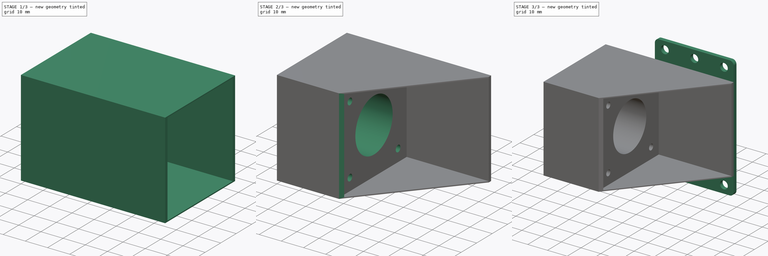
[diagram: build sequence overview — one tinted view per stage of 3, left to right]
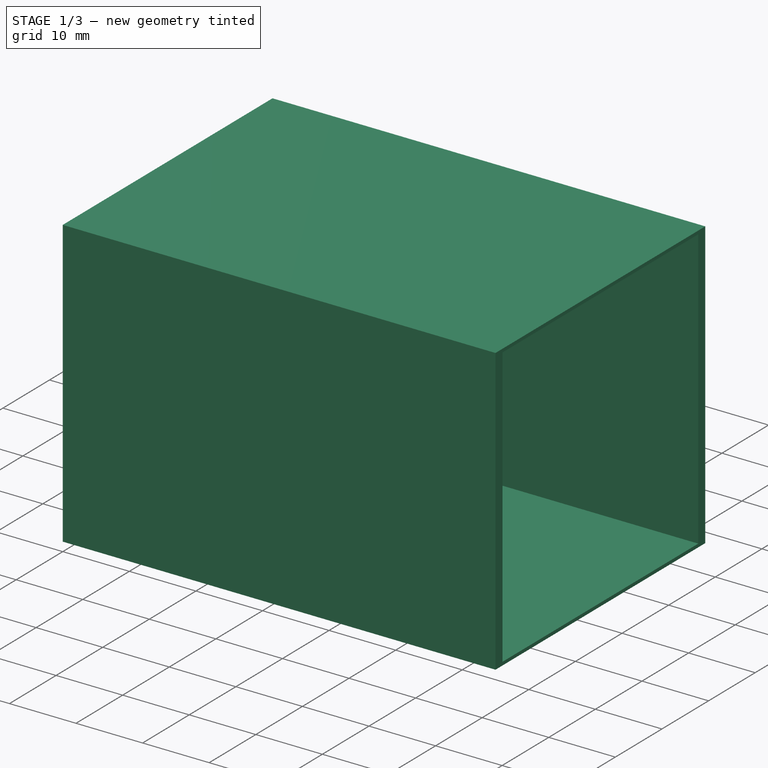
[diagram: stage 1 of 3 — iso view after this stage's code; geometry added in this stage tinted green]
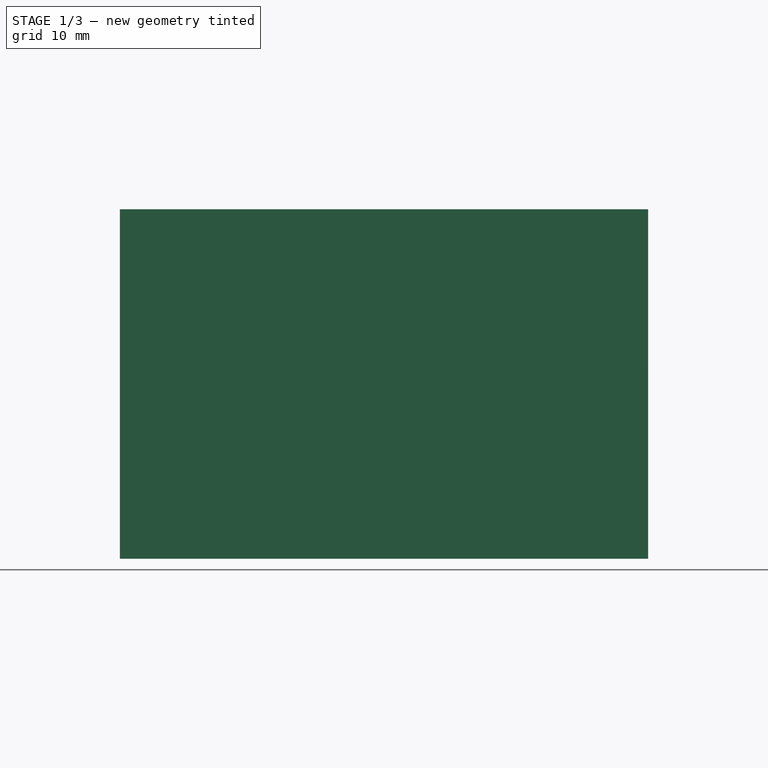
[diagram: stage 1 of 3 — front view after this stage's code; geometry added in this stage tinted green]
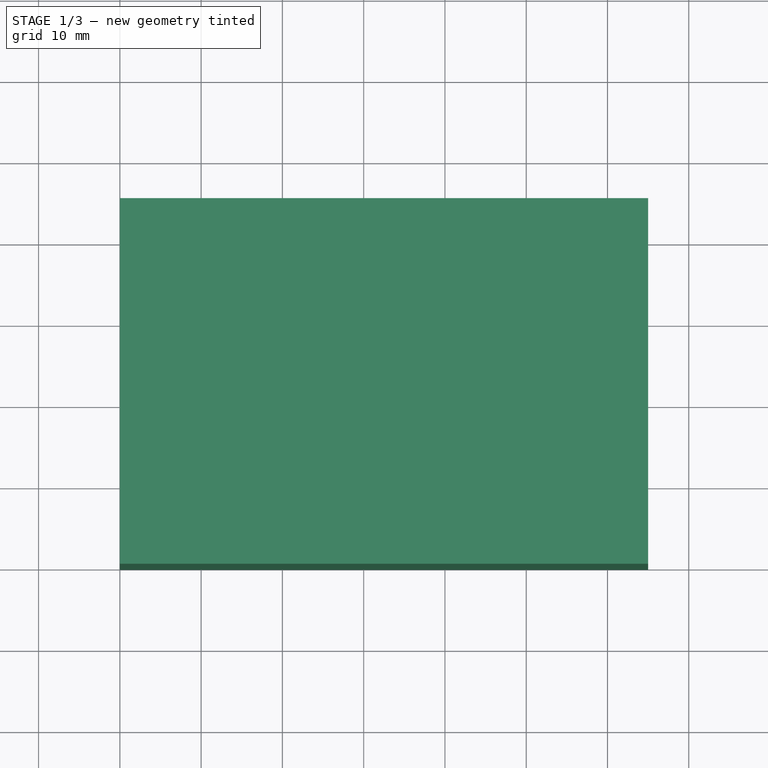
[diagram: stage 1 of 3 — top view after this stage's code; geometry added in this stage tinted green]
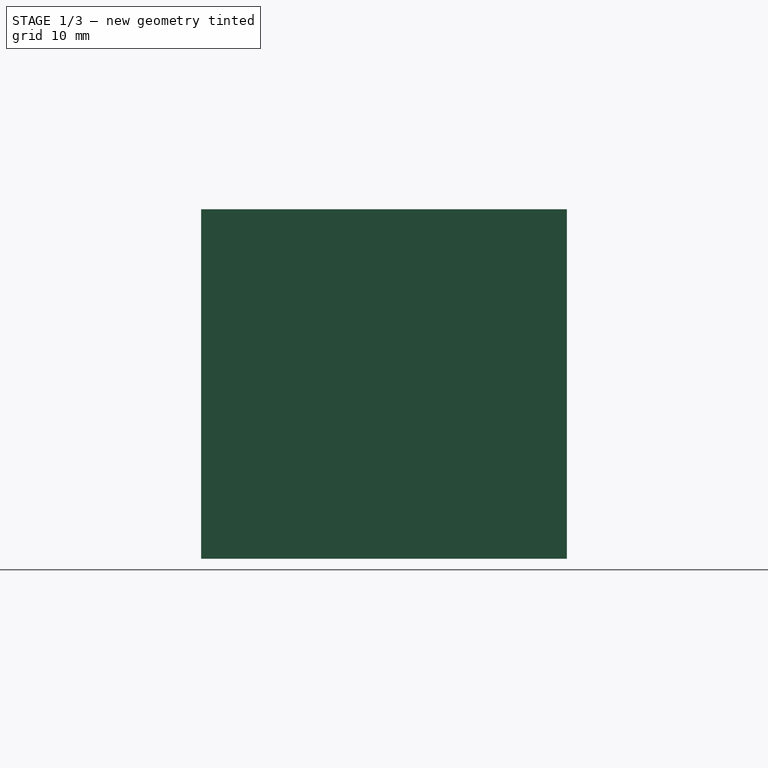
[diagram: stage 1 of 3 — right view after this stage's code; geometry added in this stage tinted green]
FCSTD DOCUMENT  (FreeCAD 0.18R14555 (Git shallow))
Label: titan-extruder
License: All rights reserved
LicenseURL: http://en.wikipedia.org/wiki/All_rights_reserved
objects: Sketcher::SketchObject×6, PartDesign::Pocket×4, PartDesign::Pad×2, PartDesign::Fillet×1, PartDesign::Body×1
note: 20 computed .brp shape members not serialized (recipe doc carries the construction recipe); baked Part::Feature solids carry a one-line shape summary decoded from their .brp

FEATURE [Sketcher::SketchObject] Sketch
  MapMode = 5
  Placement = pos=(0,0,0) rot=(0.57735,0.57735,0.57735;2.0944rad)
  Support = -> [YZ_Plane]
  sketch-geometry (4):
    g0: LineSegment StartX=0 StartY=0 StartZ=0 EndX=45 EndY=0 EndZ=0
    g1: LineSegment StartX=45 StartY=0 StartZ=0 EndX=45 EndY=43 EndZ=0
    g2: LineSegment StartX=45 StartY=43 StartZ=0 EndX=0 EndY=43 EndZ=0
    g3: LineSegment StartX=0 StartY=43 StartZ=0 EndX=0 EndY=0 EndZ=0
  constraints (11):
    c: Coincident(g0,g1)
    c: Coincident(g1,g2)
    c: Coincident(g2,g3)
    c: Coincident(g3,g0)
    c: Horizontal(g0)
    c: Horizontal(g2)
    c: Vertical(g1)
    c: Vertical(g3)
    c: Coincident(g0,g-1)
    c: DistanceX(g2,g2) = 45
    c: DistanceY(g1,g1) = 43
FEATURE [PartDesign::Pad] Pad
  Length = 65
  Length2 = 100
  Placement = pos=(0,0,0) rot=(0.57735,0.57735,0.57735;2.0944rad)
  Profile = -> Sketch
  Type = 0
FEATURE [Sketcher::SketchObject] Sketch001
  ExternalGeometry = -> [Pad]
  MapMode = 5
  Placement = pos=(65,-2.89e-14,2.16e-14) rot=(0.57735,0.57735,0.57735;2.0944rad)
  Support = -> [Pad]
  sketch-geometry (7):
    g0: LineSegment StartX=1.5 StartY=42.5 StartZ=0 EndX=43.5 EndY=42.5 EndZ=0
    g1: LineSegment StartX=43.5 StartY=42.5 StartZ=0 EndX=43.5 EndY=0.5 EndZ=0
    g2: LineSegment StartX=43.5 StartY=0.5 StartZ=0 EndX=1.5 EndY=0.5 EndZ=0
    g3: LineSegment StartX=1.5 StartY=0.5 StartZ=0 EndX=1.5 EndY=42.5 EndZ=0
    g4: LineSegment [constr] StartX=1.5 StartY=42.5 StartZ=0 EndX=1.42e-14 EndY=43 EndZ=0
    g5: LineSegment [constr] StartX=43.5 StartY=42.5 StartZ=0 EndX=45 EndY=43 EndZ=0
    g6: LineSegment [constr] StartX=1.5 StartY=0.5 StartZ=0 EndX=0 EndY=1e-16 EndZ=0
  constraints (18):
    c: Coincident(g0,g1)
    c: Coincident(g1,g2)
    c: Coincident(g2,g3)
    c: Coincident(g3,g0)
    c: Horizontal(g0)
    c: Horizontal(g2)
    c: Vertical(g1)
    c: Vertical(g3)
    c: Equal(g3,g0)
    c: DistanceX(g0,g0) = 42
    c: Coincident(g4,g0)
    c: Coincident(g4,g-4)
    c: Coincident(g5,g0)
    c: Coincident(g5,g-3)
    c: Coincident(g6,g2)
    c: Coincident(g6,g-1)
    c: Equal(g6,g4)
    c: Equal(g4,g5)
FEATURE [PartDesign::Pocket] Pocket
  BaseFeature = -> Pad
  Length = 37
  Length2 = 100
  Placement = pos=(0,0,0) rot=(0.57735,0.57735,0.57735;2.0944rad)
  Profile = -> Sketch001
  Type = 0
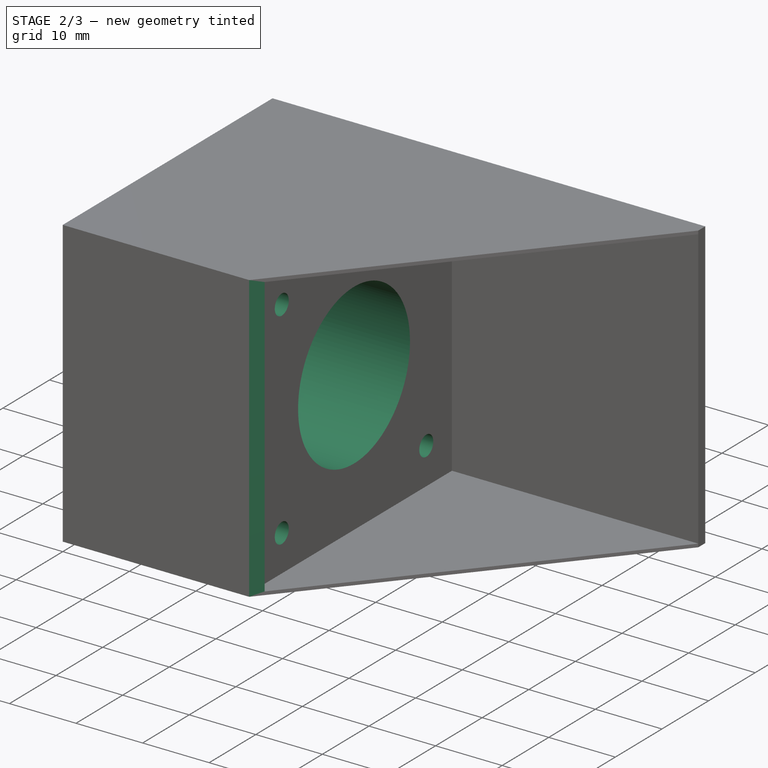
[diagram: stage 2 of 3 — iso view after this stage's code; geometry added in this stage tinted green]
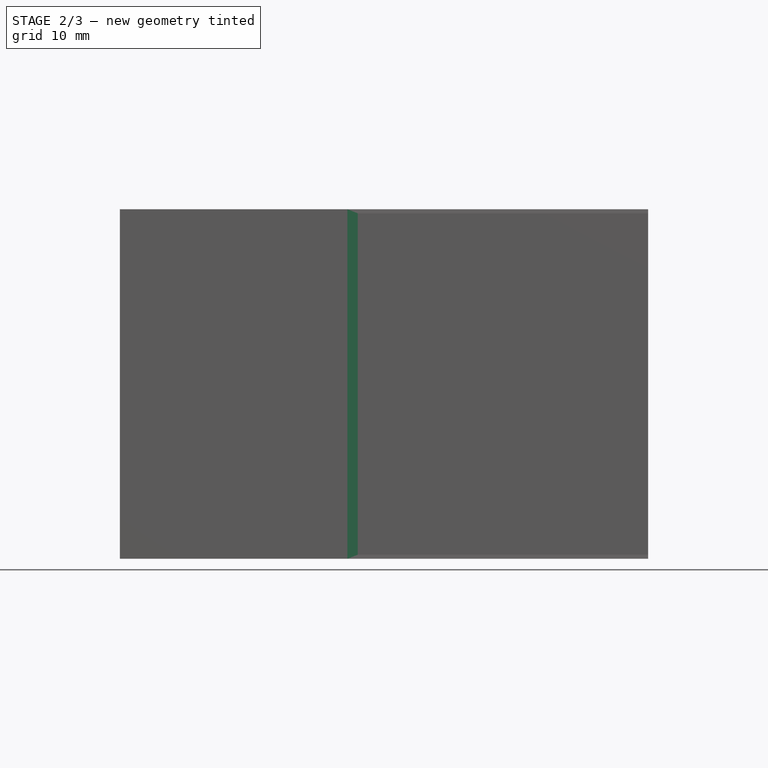
[diagram: stage 2 of 3 — front view after this stage's code; geometry added in this stage tinted green]
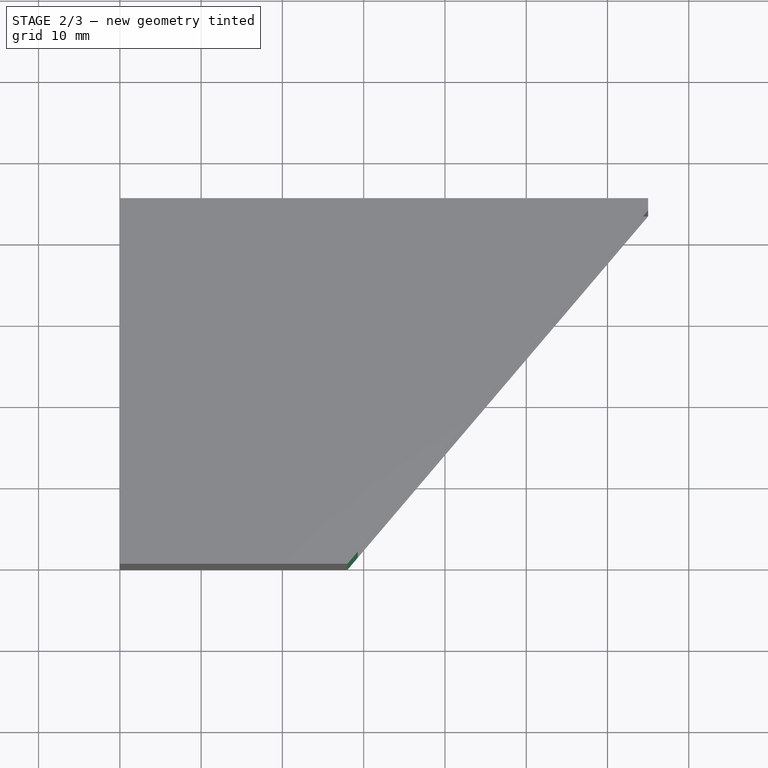
[diagram: stage 2 of 3 — top view after this stage's code; geometry added in this stage tinted green]
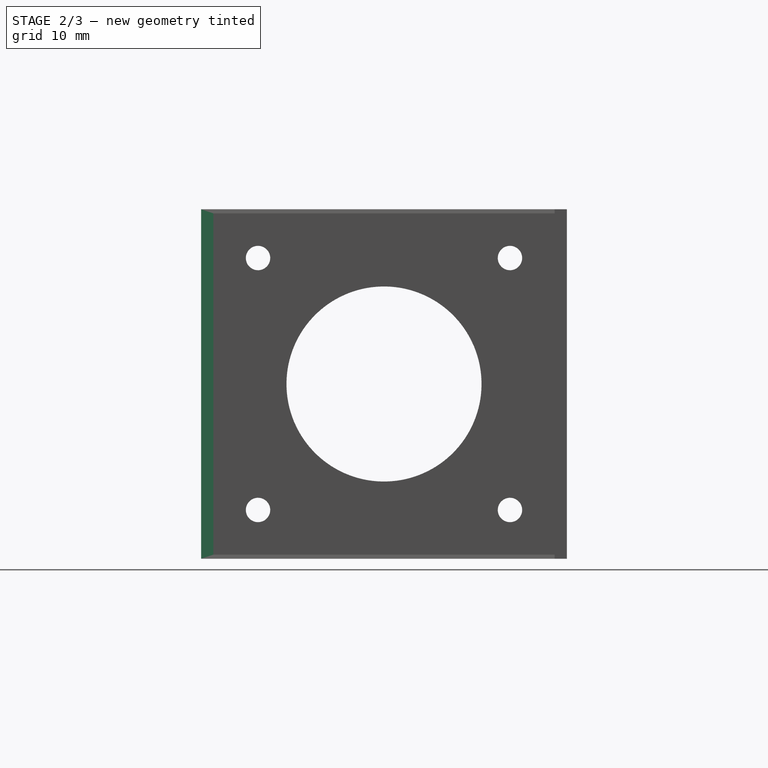
[diagram: stage 2 of 3 — right view after this stage's code; geometry added in this stage tinted green]
FEATURE [Sketcher::SketchObject] Sketch002
  ExternalGeometry = -> [Pocket]
  MapMode = 5
  Placement = pos=(-3.1e-14,2.86e-14,43) rot=(0,0,-1;1.5708rad)
  Support = -> [Pocket]
  sketch-geometry (4):
    g0: LineSegment StartX=-43.5 StartY=65 StartZ=0 EndX=0 EndY=28 EndZ=0
    g1: LineSegment StartX=0 StartY=28 StartZ=0 EndX=0 EndY=65 EndZ=0
    g2: LineSegment StartX=0 StartY=65 StartZ=0 EndX=-43.5 EndY=65 EndZ=0
    g3: LineSegment [constr] StartX=-1.5 StartY=28 StartZ=0 EndX=0 EndY=28 EndZ=0
  constraints (10):
    c: Coincident(g0,g1)
    c: Vertical(g1)
    c: Coincident(g0,g2)
    c: Horizontal(g2)
    c: Coincident(g0,g-4)
    c: PointOnObject(g1,g-2)
    c: Coincident(g3,g-3)
    c: Horizontal(g3)
    c: Coincident(g0,g3)
    c: Coincident(g2,g1)
FEATURE [PartDesign::Pocket] Pocket001
  BaseFeature = -> Pocket
  Length = 5
  Length2 = 100
  Placement = pos=(0,0,0) rot=(0.57735,0.57735,0.57735;2.0944rad)
  Profile = -> Sketch002
  Type = 1
FEATURE [Sketcher::SketchObject] Sketch003
  ExternalGeometry = -> [Pocket001]
  MapMode = 5
  Placement = pos=(28,-2.19e-14,1.57e-14) rot=(0.57735,0.57735,0.57735;2.0944rad)
  Support = -> [Pocket001]
  sketch-geometry (11):
    g0: LineSegment [constr] StartX=1.5 StartY=42.5 StartZ=0 EndX=43.5 EndY=0.5 EndZ=0
    g1: LineSegment [constr] StartX=1.5 StartY=0.5 StartZ=0 EndX=43.5 EndY=42.5 EndZ=0
    g2: Circle CenterX=22.5 CenterY=21.5 CenterZ=0 NormalX=0 NormalY=0 NormalZ=1 AngleXU=0 Radius=12
    g3: LineSegment [constr] StartX=7 StartY=37 StartZ=0 EndX=38 EndY=37 EndZ=0
    g4: LineSegment [constr] StartX=38 StartY=37 StartZ=0 EndX=38 EndY=6 EndZ=0
    g5: LineSegment [constr] StartX=38 StartY=6 StartZ=0 EndX=7 EndY=6 EndZ=0
    g6: LineSegment [constr] StartX=7 StartY=6 StartZ=0 EndX=7 EndY=37 EndZ=0
    g7: Circle CenterX=7 CenterY=37 CenterZ=0 NormalX=0 NormalY=0 NormalZ=1 AngleXU=0 Radius=1.5
    g8: Circle CenterX=38 CenterY=37 CenterZ=0 NormalX=0 NormalY=0 NormalZ=1 AngleXU=0 Radius=1.5
    g9: Circle CenterX=7 CenterY=6 CenterZ=0 NormalX=0 NormalY=0 NormalZ=1 AngleXU=0 Radius=1.5
    g10: Circle CenterX=38 CenterY=6 CenterZ=0 NormalX=0 NormalY=0 NormalZ=1 AngleXU=0 Radius=1.5
  constraints (27):
    c: Coincident(g0,g-3)
    c: Coincident(g0,g-4)
    c: Coincident(g1,g-4)
    c: Coincident(g1,g-3)
    c: PointOnObject(g2,g0)
    c: PointOnObject(g2,g1)
    c: Radius(g2) = 12
    c: PointOnObject(g3,g0)
    c: PointOnObject(g3,g1)
    c: Horizontal(g3)
    c: Coincident(g4,g3)
    c: Vertical(g4)
    c: PointOnObject(g4,g0)
    c: Coincident(g5,g4)
    c: PointOnObject(g5,g1)
    c: Coincident(g6,g5)
    c: Coincident(g6,g3)
    c: Vertical(g6)
    c: DistanceX(g3,g3) = 31
    c: Coincident(g7,g3)
    c: Coincident(g8,g3)
    c: Coincident(g9,g5)
    c: Coincident(g10,g4)
    c: Equal(g7,g8)
    c: Equal(g8,g10)
    c: Equal(g10,g9)
    c: Radius(g7) = 1.5
FEATURE [PartDesign::Pocket] Pocket002
  BaseFeature = -> Pocket001
  Length = 5
  Length2 = 100
  Placement = pos=(0,0,0) rot=(0.57735,0.57735,0.57735;2.0944rad)
  Profile = -> Sketch003
  Type = 1
FEATURE [Sketcher::SketchObject] Sketch004
  MapMode = 5
  Placement = pos=(0,0,0) rot=(0.707107,0.707107,0;3.14159rad)
  Support = -> [Pocket002]
  sketch-geometry (1):
    g0: Circle CenterX=15 CenterY=10 CenterZ=0 NormalX=0 NormalY=0 NormalZ=1 AngleXU=0 Radius=6
  constraints (3):
    c: DistanceY(g-1,g0) = 10
    c: DistanceX(g-1,g0) = 15
    c: Radius(g0) = 6
FEATURE [PartDesign::Pocket] Pocket003
  BaseFeature = -> Pocket002
  Length = 10
  Length2 = 100
  Placement = pos=(0,0,0) rot=(0.57735,0.57735,0.57735;2.0944rad)
  Profile = -> Sketch004
  Type = 0
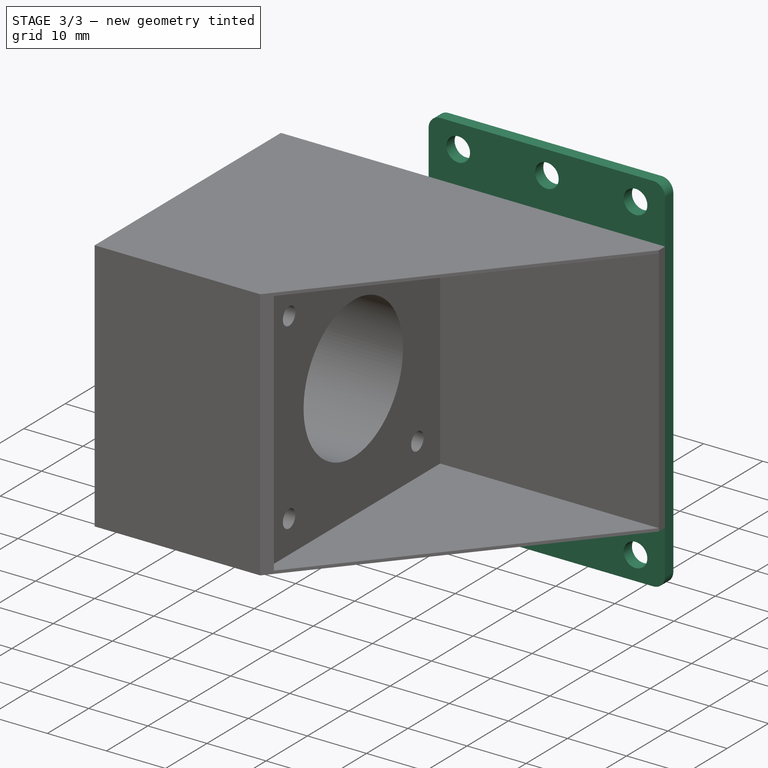
[diagram: stage 3 of 3 — iso view after this stage's code; geometry added in this stage tinted green]
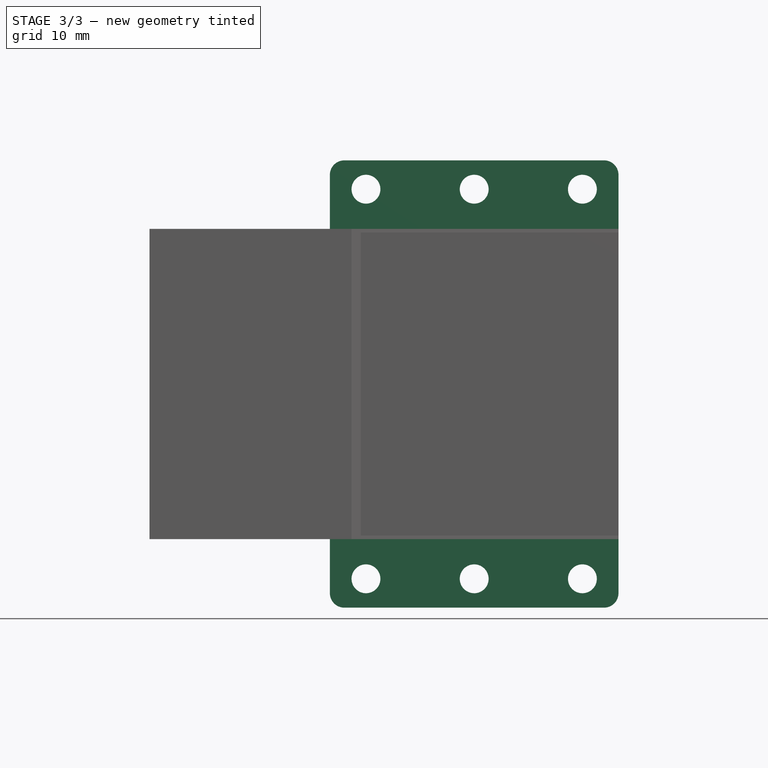
[diagram: stage 3 of 3 — front view after this stage's code; geometry added in this stage tinted green]
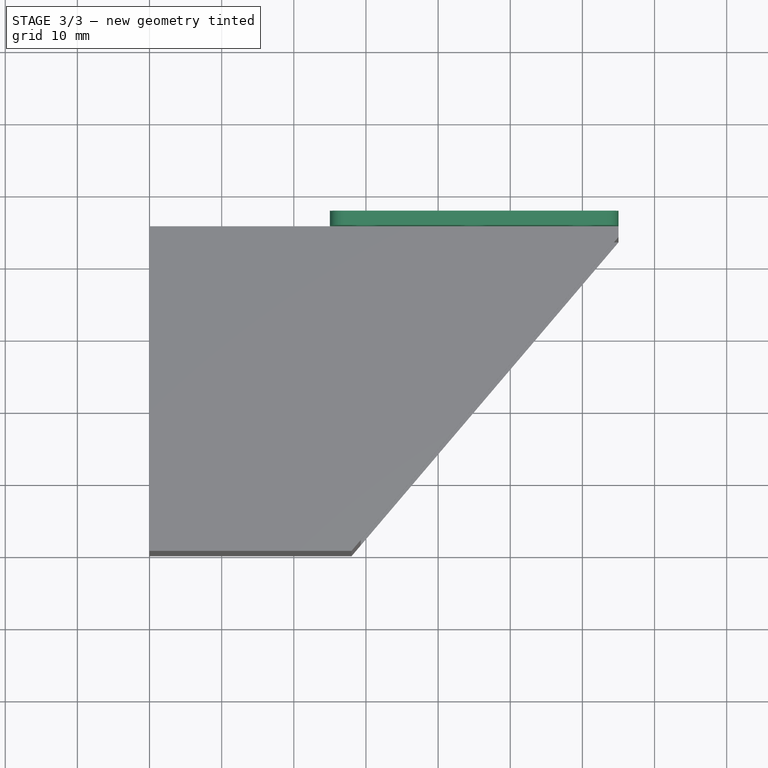
[diagram: stage 3 of 3 — top view after this stage's code; geometry added in this stage tinted green]
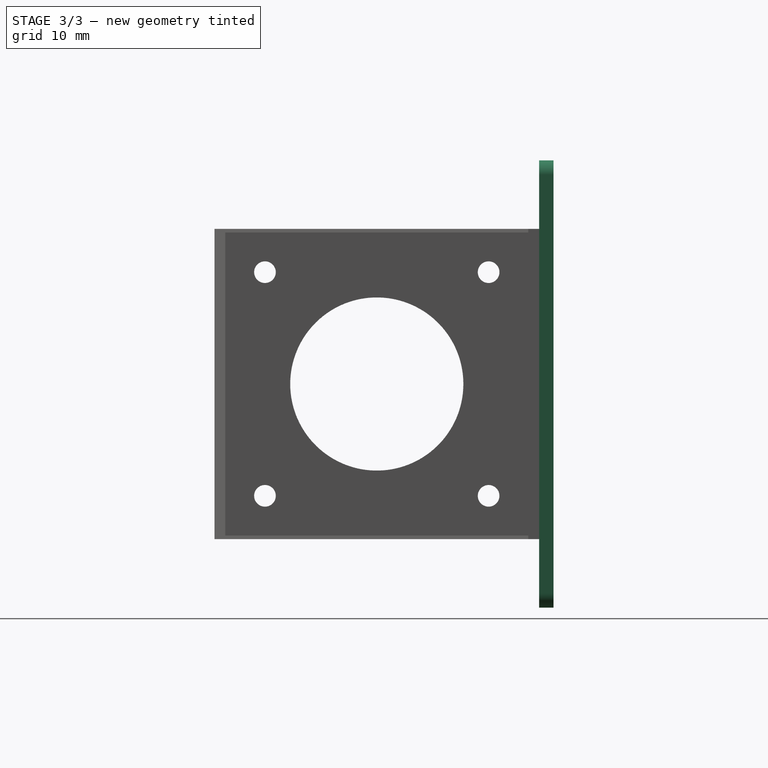
[diagram: stage 3 of 3 — right view after this stage's code; geometry added in this stage tinted green]
FEATURE [Sketcher::SketchObject] Sketch005
  ExternalGeometry = -> [Pocket003]
  MapMode = 5
  Placement = pos=(2e-14,45,-7.49e-14) rot=(0.57735,0.57735,0.57735;4.18879rad)
  Support = -> [Pocket003]
  sketch-geometry (22):
    g0: LineSegment StartX=-9.5 StartY=65 StartZ=0 EndX=52.5 EndY=65 EndZ=0
    g1: LineSegment StartX=52.5 StartY=65 StartZ=0 EndX=52.5 EndY=25 EndZ=0
    g2: LineSegment StartX=52.5 StartY=25 StartZ=0 EndX=-9.5 EndY=25 EndZ=0
    g3: LineSegment StartX=-9.5 StartY=25 StartZ=0 EndX=-9.5 EndY=65 EndZ=0
    g4: LineSegment [constr] StartX=43 StartY=65 StartZ=0 EndX=52.5 EndY=25 EndZ=0
    g5: LineSegment [constr] StartX=3.33e-14 StartY=65 StartZ=0 EndX=-9.5 EndY=25 EndZ=0
    g6: Circle CenterX=-5.5 CenterY=60 CenterZ=0 NormalX=0 NormalY=0 NormalZ=1 AngleXU=0 Radius=2
    g7: Circle CenterX=-5.5 CenterY=45 CenterZ=0 NormalX=0 NormalY=0 NormalZ=1 AngleXU=0 Radius=2
    g8: Circle CenterX=-5.5 CenterY=30 CenterZ=0 NormalX=0 NormalY=0 NormalZ=1 AngleXU=0 Radius=2
    g9: Circle CenterX=48.5 CenterY=60 CenterZ=0 NormalX=0 NormalY=0 NormalZ=1 AngleXU=0 Radius=2
    g10: Circle CenterX=48.5 CenterY=45 CenterZ=0 NormalX=0 NormalY=0 NormalZ=1 AngleXU=0 Radius=2
    g11: Circle CenterX=48.5 CenterY=30 CenterZ=0 NormalX=0 NormalY=0 NormalZ=1 AngleXU=0 Radius=2
    g12: LineSegment [constr] StartX=-5.5 StartY=60 StartZ=0 EndX=-5.5 EndY=45 EndZ=0
    g13: LineSegment [constr] StartX=-5.5 StartY=45 StartZ=0 EndX=-5.5 EndY=30 EndZ=0
    g14: LineSegment [constr] StartX=48.5 StartY=30 StartZ=0 EndX=48.5 EndY=45 EndZ=0
    g15: LineSegment [constr] StartX=48.5 StartY=45 StartZ=0 EndX=48.5 EndY=60 EndZ=0
    g16: LineSegment [constr] StartX=-5.5 StartY=60 StartZ=0 EndX=48.5 EndY=60 EndZ=0
    g17: LineSegment [constr] StartX=48.5 StartY=45 StartZ=0 EndX=-5.5 EndY=45 EndZ=0
    g18: LineSegment [constr] StartX=-5.5 StartY=30 StartZ=0 EndX=48.5 EndY=30 EndZ=0
    g19: LineSegment [constr] StartX=-5.5 StartY=60 StartZ=0 EndX=-9.5 EndY=65 EndZ=0
    g20: LineSegment [constr] StartX=48.5 StartY=60 StartZ=0 EndX=52.5 EndY=65 EndZ=0
    g21: LineSegment [constr] StartX=-5.5 StartY=30 StartZ=0 EndX=-9.5 EndY=25 EndZ=0
  constraints (54):
    c: Coincident(g0,g1)
    c: Coincident(g1,g2)
    c: Coincident(g2,g3)
    c: Coincident(g3,g0)
    c: Horizontal(g0)
    c: Horizontal(g2)
    c: Vertical(g1)
    c: Vertical(g3)
    c: PointOnObject(g-3,g0)
    c: Coincident(g4,g-3)
    c: Coincident(g4,g1)
    c: Coincident(g5,g-4)
    c: Coincident(g5,g2)
    c: Equal(g5,g4)
    c: DistanceY(g1,g1) = 40
    c: DistanceX(g2,g2) = 62
    c: Coincident(g12,g6)
    c: Coincident(g12,g7)
    c: Coincident(g13,g7)
    c: Coincident(g13,g8)
    c: Coincident(g14,g11)
    c: Coincident(g14,g10)
    c: Coincident(g15,g10)
    c: Coincident(g15,g9)
    c: Vertical(g15)
    c: Vertical(g14)
    c: Vertical(g12)
    c: Vertical(g13)
    c: Coincident(g16,g6)
    c: Coincident(g16,g9)
    c: Horizontal(g16)
    c: Coincident(g17,g10)
    c: Coincident(g17,g7)
    c: Horizontal(g17)
    c: Coincident(g18,g8)
    c: Coincident(g18,g11)
    c: Horizontal(g18)
    c: Equal(g6,g9)
    c: Equal(g9,g10)
    c: Equal(g10,g7)
    c: Equal(g7,g8)
    c: Equal(g8,g11)
    c: Coincident(g19,g6)
    c: Coincident(g19,g0)
    c: Coincident(g20,g9)
    c: Coincident(g20,g0)
    c: Coincident(g21,g8)
    c: Coincident(g21,g2)
    c: Equal(g21,g19)
    c: Equal(g19,g20)
    c: Equal(g12,g13)
    c: Radius(g6) = 2
    c: DistanceY(g8,g6) = 30
    c: DistanceX(g6,g9) = 54
FEATURE [PartDesign::Pad] Pad001
  BaseFeature = -> Pocket003
  Length = 2
  Length2 = 100
  Placement = pos=(0,0,0) rot=(0.57735,0.57735,0.57735;2.0944rad)
  Profile = -> Sketch005
  Type = 0
FEATURE [PartDesign::Fillet] Fillet
  Base = -> Pad001 [Edge57,Edge51,Edge55,Edge52]
  BaseFeature = -> Pad001
  Placement = pos=(0,0,0) rot=(0.57735,0.57735,0.57735;2.0944rad)
  Radius = 2
FEATURE [PartDesign::Body] Body
  Group = -> [Sketch,Pad,Sketch001,Pocket,Sketch002,Pocket001,Sketch003,Pocket002,Sketch004,Pocket003,Sketch005,Pad001,Fillet]
  Origin = -> Origin
  Tip = -> Fillet
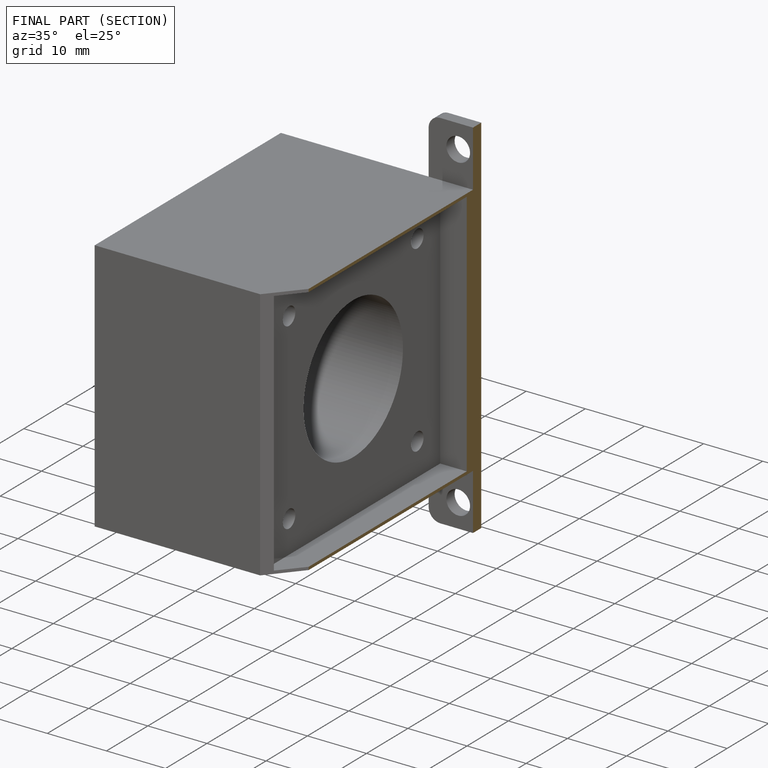
[diagram: finished part — half-section view (interior)]
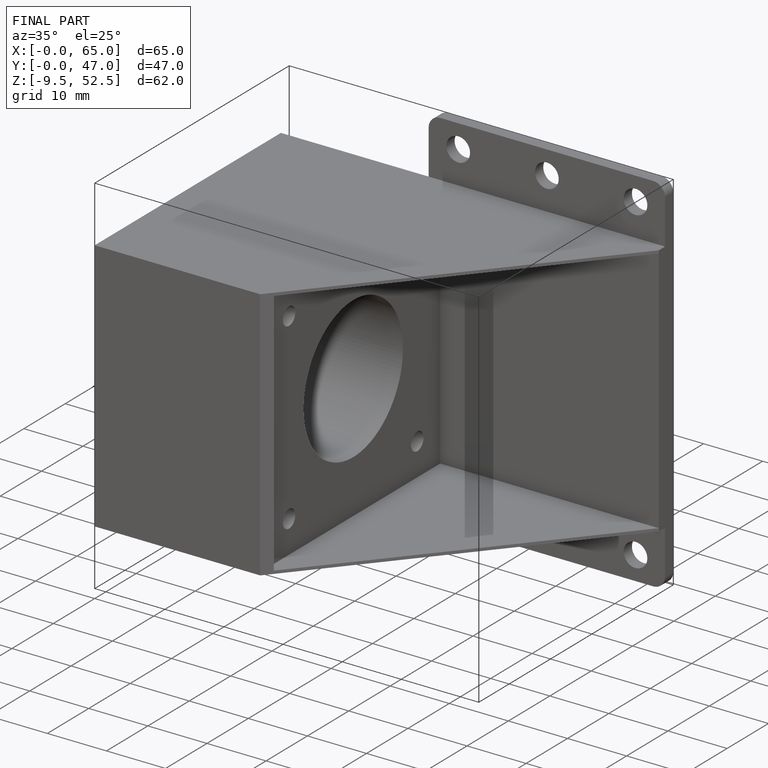
[diagram: finished part — iso view with bounding-box wireframe]
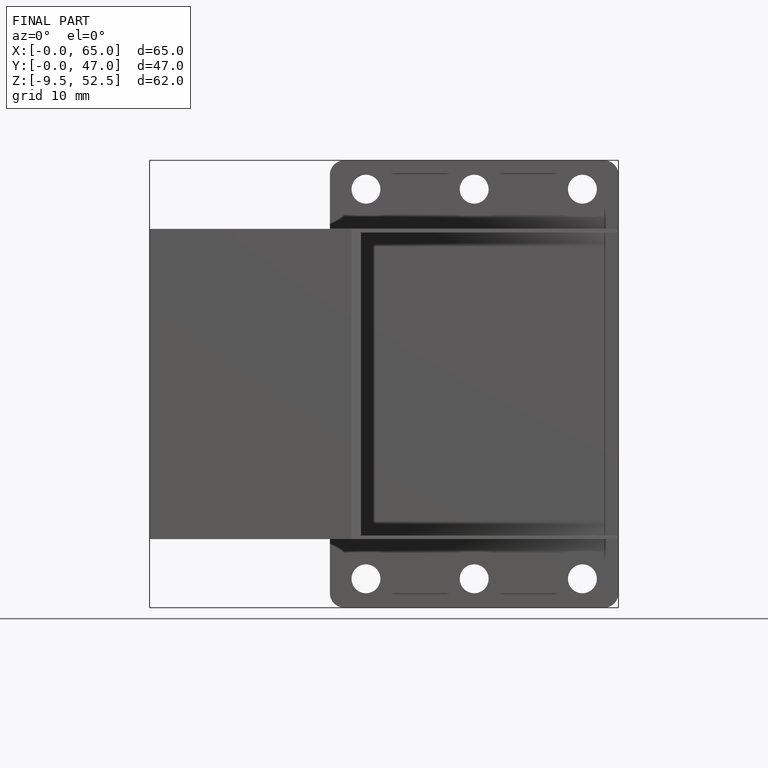
[diagram: finished part — front view with bounding-box wireframe]
